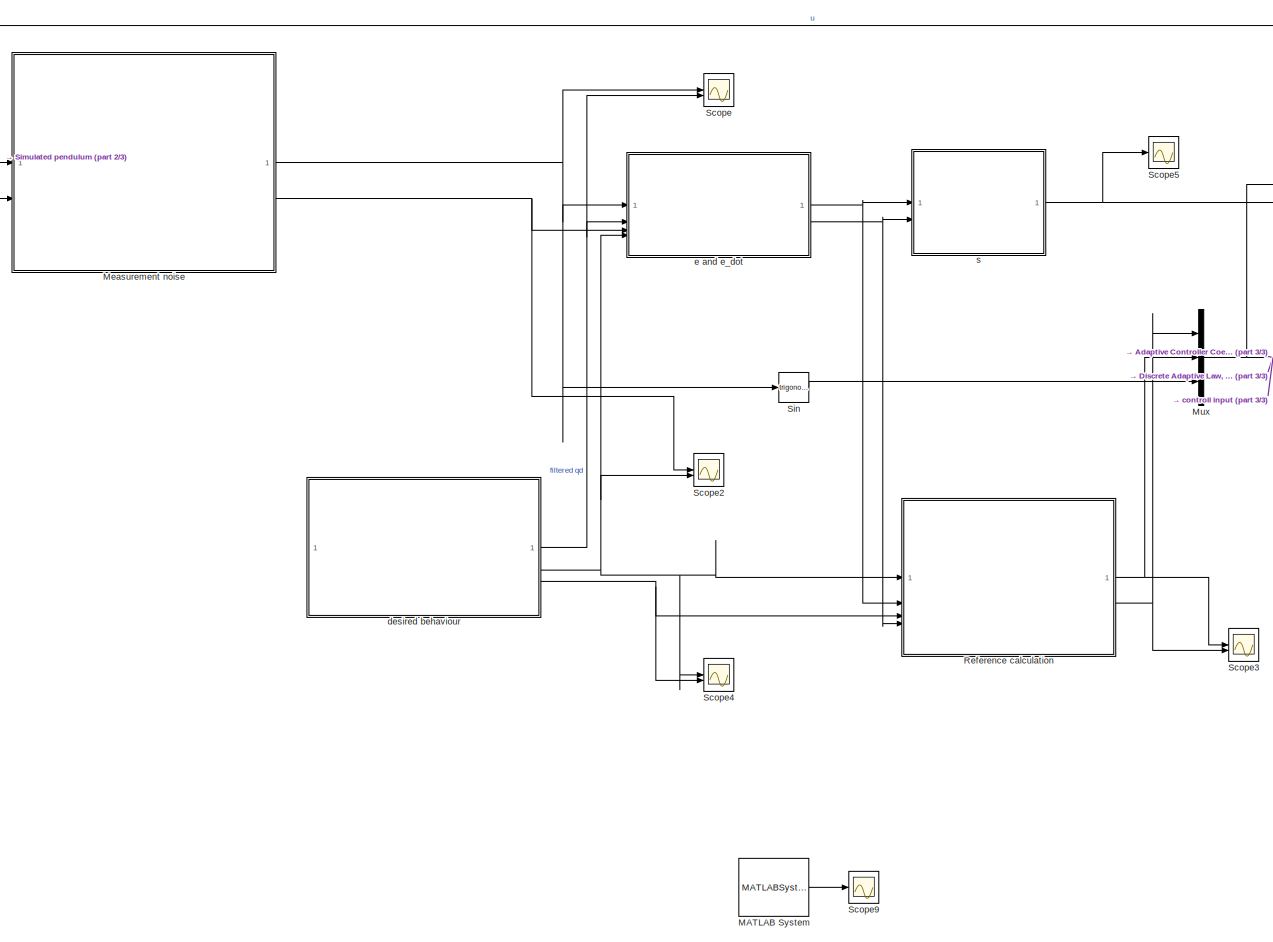
[diagram: root canvas - part 1/3, center side, full height]
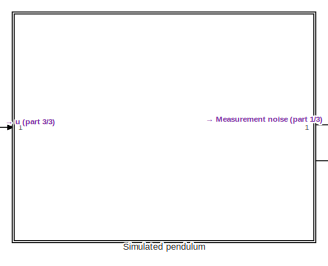
[diagram: root canvas - part 2/3, top left region]
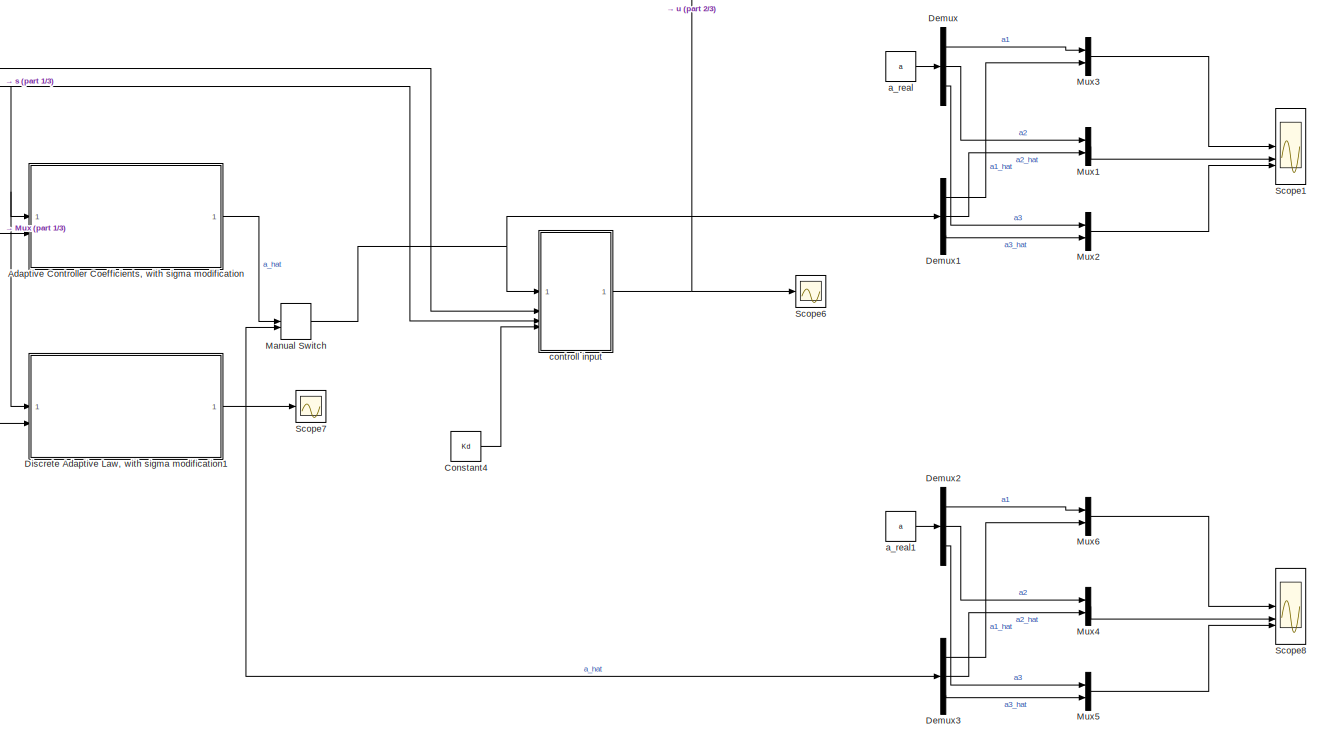
[diagram: root canvas - part 3/3, right side, full height]
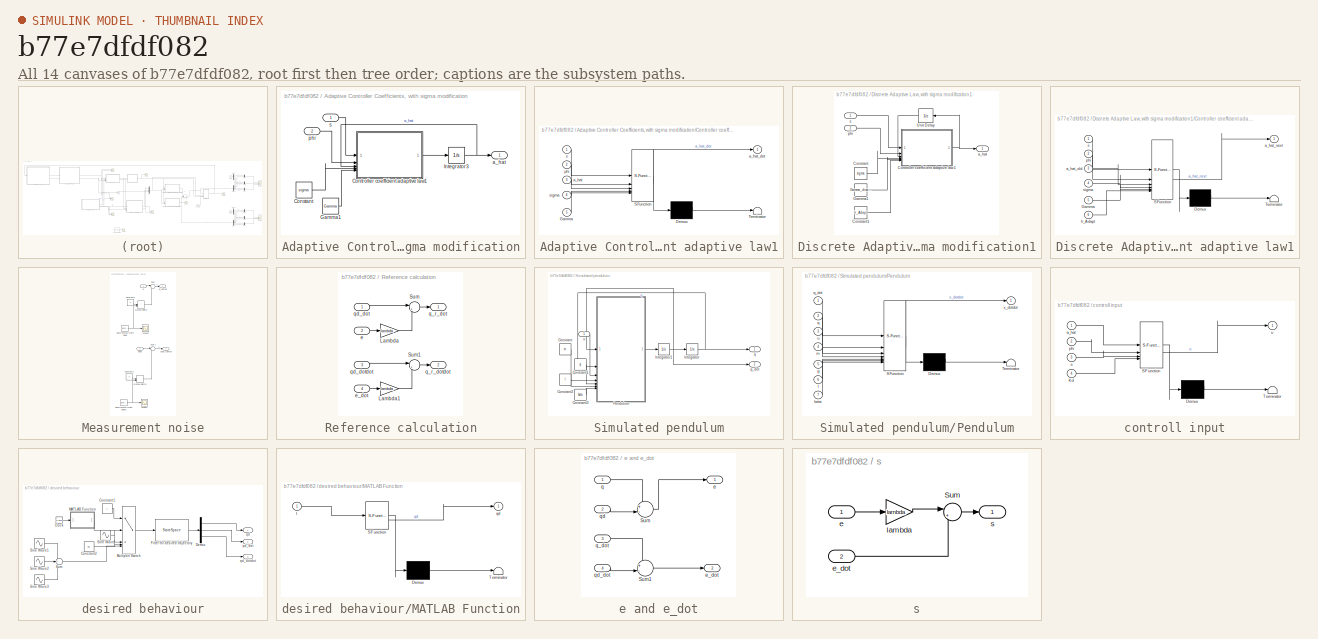
[diagram: thumbnail index - all 14 canvases of the model, root first then tree order]
MODEL slx_b77e7dfdf082
KIND model
CONFIG AbsTol = auto
CONFIG EnableMultiTasking = off
CONFIG FixedStep = auto
CONFIG MaxStep = auto
CONFIG MinStep = auto
CONFIG RelTol = 1e-3
CONFIG SampleTimeConstraint = Unconstrained
CONFIG SolverName = VariableStepAuto
CONFIG StartTime = 0.0
CONFIG StopTime = 15
WORKSPACE source: external: MAT-File  (data not in archive)
BLOCK [SubSystem] Adaptive Controller Coefficients, with sigma modification
BLOCK [Constant] Adaptive Controller Coefficients, with sigma modification/Constant
  Value = sigma
BLOCK [SubSystem] Adaptive Controller Coefficients, with sigma modification/Controller coefficient adaptive law1
  ErrorFcn = Stateflow.Translate.translate
  PermitHierarchicalResolution = ExplicitOnly
  SFBlockType = MATLAB Function
  TreatAsAtomicUnit = on
BLOCK [Demux] Adaptive Controller Coefficients, with sigma modification/Controller coefficient adaptive law1/ Demux 
  Outputs = 1
BLOCK [S-Function] Adaptive Controller Coefficients, with sigma modification/Controller coefficient adaptive law1/ SFunction 
  EnableBusSupport = off
  FunctionName = sf_sfun
  PortCounts = [5 2]
  SFcnIsStateOwnerBlock = off
  SFunctionDeploymentMode = off
  Tag = Stateflow S-Function 6
BLOCK [Terminator] Adaptive Controller Coefficients, with sigma modification/Controller coefficient adaptive law1/ Terminator 
BLOCK [Inport] Adaptive Controller Coefficients, with sigma modification/Controller coefficient adaptive law1/Gamma
  Port = 5
BLOCK [Inport] Adaptive Controller Coefficients, with sigma modification/Controller coefficient adaptive law1/a_hat
  Port = 3
BLOCK [Outport] Adaptive Controller Coefficients, with sigma modification/Controller coefficient adaptive law1/a_hat_dot
BLOCK [Inport] Adaptive Controller Coefficients, with sigma modification/Controller coefficient adaptive law1/phi
  Port = 2
BLOCK [Inport] Adaptive Controller Coefficients, with sigma modification/Controller coefficient adaptive law1/s
BLOCK [Inport] Adaptive Controller Coefficients, with sigma modification/Controller coefficient adaptive law1/sigma
  Port = 4
BLOCK [Constant] Adaptive Controller Coefficients, with sigma modification/Gamma1
  Value = Gamma
BLOCK [Integrator] Adaptive Controller Coefficients, with sigma modification/Integrator3
  InitialCondition = a_hat_0
BLOCK [Outport] Adaptive Controller Coefficients, with sigma modification/a_hat
BLOCK [Inport] Adaptive Controller Coefficients, with sigma modification/phi
  Port = 2
BLOCK [Inport] Adaptive Controller Coefficients, with sigma modification/s
BLOCK [Constant] Constant4
  Value = Kd
BLOCK [Demux] Demux
  Outputs = 3
BLOCK [Demux] Demux1
  Outputs = 3
BLOCK [Demux] Demux2
  Outputs = 3
BLOCK [Demux] Demux3
  Outputs = 3
BLOCK [SubSystem] Discrete Adaptive Law, with sigma modification1
BLOCK [Constant] Discrete Adaptive Law, with sigma modification1/Constant
  Value = sigma
BLOCK [Constant] Discrete Adaptive Law, with sigma modification1/Constant1
  Value = h_Adapt
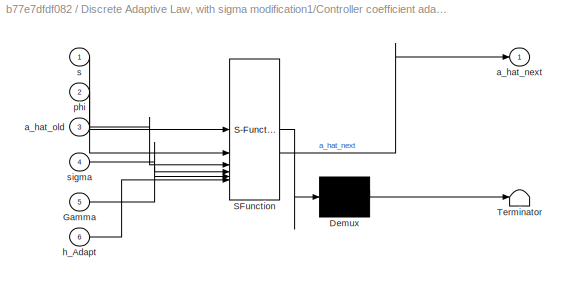
BLOCK [SubSystem] Discrete Adaptive Law, with sigma modification1/Controller coefficient adaptive law1
  ErrorFcn = Stateflow.Translate.translate
  PermitHierarchicalResolution = ExplicitOnly
  SFBlockType = MATLAB Function
  SystemSampleTime = h_Adapt
  TreatAsAtomicUnit = on
BLOCK [Demux] Discrete Adaptive Law, with sigma modification1/Controller coefficient adaptive law1/ Demux 
  Outputs = 1
BLOCK [S-Function] Discrete Adaptive Law, with sigma modification1/Controller coefficient adaptive law1/ SFunction 
  EnableBusSupport = off
  FunctionName = sf_sfun
  PortCounts = [6 2]
  SFcnIsStateOwnerBlock = off
  SFunctionDeploymentMode = off
  Tag = Stateflow S-Function 1
BLOCK [Terminator] Discrete Adaptive Law, with sigma modification1/Controller coefficient adaptive law1/ Terminator 
BLOCK [Inport] Discrete Adaptive Law, with sigma modification1/Controller coefficient adaptive law1/Gamma
  Port = 5
BLOCK [Outport] Discrete Adaptive Law, with sigma modification1/Controller coefficient adaptive law1/a_hat_next
BLOCK [Inport] Discrete Adaptive Law, with sigma modification1/Controller coefficient adaptive law1/a_hat_old
  Port = 3
BLOCK [Inport] Discrete Adaptive Law, with sigma modification1/Controller coefficient adaptive law1/h_Adapt
  Port = 6
BLOCK [Inport] Discrete Adaptive Law, with sigma modification1/Controller coefficient adaptive law1/phi
  Port = 2
BLOCK [Inport] Discrete Adaptive Law, with sigma modification1/Controller coefficient adaptive law1/s
BLOCK [Inport] Discrete Adaptive Law, with sigma modification1/Controller coefficient adaptive law1/sigma
  Port = 4
BLOCK [Constant] Discrete Adaptive Law, with sigma modification1/Gamma1
  Value = Gamma_discrete
BLOCK [UnitDelay] Discrete Adaptive Law, with sigma modification1/Unit Delay
  HasFrameUpgradeWarning = on
  InitialCondition = a_hat_0
  NameLocation = top
  SampleTime = h_Adapt
BLOCK [Outport] Discrete Adaptive Law, with sigma modification1/a_hat
BLOCK [Inport] Discrete Adaptive Law, with sigma modification1/phi
  Port = 2
BLOCK [Inport] Discrete Adaptive Law, with sigma modification1/s
BLOCK [MATLABSystem] MATLAB System
  MaskType = test1
  SimulateUsing = Interpreted execution
  System = test1
BLOCK [ManualSwitch] Manual Switch
BLOCK [SubSystem] Measurement noise
BLOCK [Reference] Measurement noise/Band-Limited White Noise  REF=simulink/Sources/Band-Limited
White Noise
  SourceBlock = simulink/Sources/Band-Limited\nWhite Noise
  SourceType = Band-Limited White Noise.
BLOCK [Reference] Measurement noise/Band-Limited White Noise1  REF=simulink/Sources/Band-Limited
White Noise
  SourceBlock = simulink/Sources/Band-Limited\nWhite Noise
  SourceType = Band-Limited White Noise.
BLOCK [Constant] Measurement noise/Constant1
  Value = 0
BLOCK [Constant] Measurement noise/Constant5
  Value = 0
BLOCK [ManualSwitch] Measurement noise/Manual Switch
  CurrentSetting = 0
BLOCK [ManualSwitch] Measurement noise/Manual Switch1
  CurrentSetting = 0
BLOCK [Scope] Measurement noise/Scope1
  ActiveDisplayYMaximum = 1
  ActiveDisplayYMinimum = -1
  DataLoggingVariableName = ScopeData7
  Floating = off
  GraphicalSettings = {"Style":{"BackgroundColor":[0.12941176470588237,0.12941176470588237,0.12941176470588237],"AxesColor":[0.07058823529411765,0.07058823529411765,0.07058823529411765],"LabelsColor":[0.8509803921568627,0.8509803921568627,0.8509803921568627],"PreserveColors":false,"Visible":[true],"LineStyle":["-"],"LineWidth":[1.5],"BarWidth":[0.9],"LineColor":["auto"],"LineFaceAlpha":[1],"LineEdgeAlpha":[1],"Marker":...<+2032ch>
  MultipleDisplayCache = [{"MaxYLimMag":1,"MaxYLimReal":1,"MinYLimMag":0,"MinYLimReal":-1,"PlotAsMagnitudePhase":false,"ShowGrid":true,"ShowLegend":false,"Title":"%<SignalLabel>","YLabel":""}]
  NumInputPorts = 1
  ScopeFrameLocation = window
  WasSavedAsWebScope = on
  WindowPosition = [360.000000,190.000000,560.000000,420.000000,]
BLOCK [Scope] Measurement noise/Scope2
  ActiveDisplayYMaximum = 1
  ActiveDisplayYMinimum = -1
  DataLoggingVariableName = ScopeData2
  Floating = off
  GraphicalSettings = {"Style":{"BackgroundColor":[0.12941176470588237,0.12941176470588237,0.12941176470588237],"AxesColor":[0.07058823529411765,0.07058823529411765,0.07058823529411765],"LabelsColor":[0.8509803921568627,0.8509803921568627,0.8509803921568627],"PreserveColors":false,"Visible":[true],"LineStyle":["-"],"LineWidth":[1.5],"BarWidth":[0.9],"LineColor":["auto"],"LineFaceAlpha":[1],"LineEdgeAlpha":[1],"Marker":...<+2032ch>
  MultipleDisplayCache = [{"MaxYLimMag":1,"MaxYLimReal":1,"MinYLimMag":0,"MinYLimReal":-1,"PlotAsMagnitudePhase":false,"ShowGrid":true,"ShowLegend":false,"Title":"%<SignalLabel>","YLabel":""}]
  NumInputPorts = 1
  ScopeFrameLocation = window
  WasSavedAsWebScope = on
  WindowPosition = [360.000000,190.000000,560.000000,420.000000,]
BLOCK [Sum] Measurement noise/Sum
  Inputs = |++
BLOCK [Sum] Measurement noise/Sum1
  Inputs = |++
BLOCK [Inport] Measurement noise/q
BLOCK [Outport] Measurement noise/q_tainted
BLOCK [Inport] Measurement noise/qdot
  Port = 2
BLOCK [Outport] Measurement noise/qdot_tainted
  Port = 2
BLOCK [Mux] Mux
  DisplayOption = bar
  Inputs = 3
BLOCK [Mux] Mux1
  DisplayOption = bar
  Inputs = 2
BLOCK [Mux] Mux2
  DisplayOption = bar
  Inputs = 2
BLOCK [Mux] Mux3
  DisplayOption = bar
  Inputs = 2
BLOCK [Mux] Mux4
  DisplayOption = bar
  Inputs = 2
BLOCK [Mux] Mux5
  DisplayOption = bar
  Inputs = 2
BLOCK [Mux] Mux6
  DisplayOption = bar
  Inputs = 2
BLOCK [SubSystem] Reference calculation
BLOCK [Gain] Reference calculation/Lambda
  Gain = lambda
BLOCK [Gain] Reference calculation/Lambda1
  Gain = lambda
BLOCK [Sum] Reference calculation/Sum
  Inputs = |+-
BLOCK [Sum] Reference calculation/Sum1
  Inputs = |+-
BLOCK [Inport] Reference calculation/e
  Port = 2
BLOCK [Inport] Reference calculation/e_dot
  Port = 4
BLOCK [Outport] Reference calculation/q_r_dot
BLOCK [Outport] Reference calculation/q_r_dotdot
  Port = 2
BLOCK [Inport] Reference calculation/qd_dot
BLOCK [Inport] Reference calculation/qd_dotdot
  Port = 3
BLOCK [Scope] Scope
  ActiveDisplayYMaximum = 1.3311085005564014
  ActiveDisplayYMinimum = -1.3223485512123507
  Floating = off
  GraphicalSettings = {"Style":{"BackgroundColor":[0.12941176470588237,0.12941176470588237,0.12941176470588237],"AxesColor":[0.07058823529411765,0.07058823529411765,0.07058823529411765],"LabelsColor":[0.8509803921568627,0.8509803921568627,0.8509803921568627],"PreserveColors":false,"Visible":[true,true],"LineStyle":["-","-"],"LineWidth":[1.5,1.5],"BarWidth":[0.9,0.9],"LineColor":["auto","auto"],"LineFaceAlpha":[1,1],"Li...<+2178ch>
  MultipleDisplayCache = [{"MaxYLimMag":1.0681046050481515,"MaxYLimReal":1.3311085005564014,"MinYLimMag":1.0446865083618986,"MinYLimReal":-1.3223485512123507,"PlotAsMagnitudePhase":false,"ShowGrid":true,"ShowLegend":true,"Title":"%<SignalLabel>","YLabel":""}]
  NumInputPorts = 2
  ScopeFrameLocation = window
  ShowLegend = on
  WasSavedAsWebScope = on
  WindowPosition = [0.000000,36.000000,1280.000000,729.000000,]
BLOCK [Scope] Scope1
  ActiveDisplayString = 3
  ActiveDisplayYMaximum = 2.2453332767433851
  ActiveDisplayYMinimum = -0.5879994906904592
  DataLoggingVariableName = ScopeData1
  Floating = off
  GraphicalSettings = {"AxesScalingProperties":{"AlignXAxis":"Center","AlignYAxis":"Center","AutoScaleXAxisLimits":false,"AxesScaling":"Manual","AxesScalingNumUpdates":10,"ExpandOnly":true,"ScaleAxesLimitsAtStop":false,"XAxisDataRange":100,"YAxisDataRange":80},"DisplayProperties":{"ColorOrder":["auto","auto","auto","auto","auto","auto","auto","auto","auto","auto","auto","auto","auto","auto","auto","auto","auto","auto",...<+3168ch>
  LayoutDimensionsString = [3, 1]
  MultipleDisplayCache = [{"MaxYLimMag":0.40035781464700204,"MaxYLimReal":0.15053047798549243,"MinYLimMag":0,"MinYLimReal":-0.11194634407659998,"PlotAsMagnitudePhase":false,"ShowGrid":true,"ShowLegend":true,"Title":"%<SignalLabel>","YLabel":""},{"MaxYLimMag":1.7630569050517408,"MaxYLimReal":1.7630569050517408,"MinYLimMag":0,"MinYLimReal":-0.49552158905611754,"PlotAsMagnitudePhase":false,"ShowGrid":true,"ShowLegend":true,"...<+253ch>
  NumInputPorts = 3
  ScopeFrameLocation = window
  ShowLegend = on
  WasSavedAsWebScope = on
  WindowPosition = [322.000000,40.000000,637.000000,721.000000,]
BLOCK [Scope] Scope2
  ActiveDisplayYMaximum = 2.0969862516059683
  ActiveDisplayYMinimum = -0.233112357060524
  DataLoggingVariableName = ScopeData8
  Floating = off
  GraphicalSettings = {"Style":{"BackgroundColor":[0.12941176470588237,0.12941176470588237,0.12941176470588237],"AxesColor":[0.07058823529411765,0.07058823529411765,0.07058823529411765],"LabelsColor":[0.8509803921568627,0.8509803921568627,0.8509803921568627],"PreserveColors":false,"Visible":[true,true],"LineStyle":["-","-"],"LineWidth":[1.5,1.5],"BarWidth":[0.9,0.9],"LineColor":["auto","auto"],"LineFaceAlpha":[1,1],"Li...<+2059ch>
  MultipleDisplayCache = [{"MaxYLimMag":2.0969862516059683,"MaxYLimReal":2.0969862516059683,"MinYLimMag":0,"MinYLimReal":-0.233112357060524,"PlotAsMagnitudePhase":false,"ShowGrid":true,"ShowLegend":false,"Title":"%<SignalLabel>","YLabel":""}]
  NumInputPorts = 2
  ScopeFrameLocation = window
  WasSavedAsWebScope = on
  WindowPosition = [360.000000,190.000000,560.000000,420.000000,]
BLOCK [Scope] Scope3
  ActiveDisplayYMaximum = 40.147404968405745
  ActiveDisplayYMinimum = -150.23287759936176
  DataLoggingVariableName = ScopeData3
  Floating = off
  GraphicalSettings = {"Style":{"BackgroundColor":[0.12941176470588237,0.12941176470588237,0.12941176470588237],"AxesColor":[0.07058823529411765,0.07058823529411765,0.07058823529411765],"LabelsColor":[0.8509803921568627,0.8509803921568627,0.8509803921568627],"PreserveColors":false,"Visible":[true,true],"LineStyle":["-","-"],"LineWidth":[1.5,1.5],"BarWidth":[0.9,0.9],"LineColor":["auto","auto"],"LineFaceAlpha":[1,1],"Li...<+2170ch>
  MultipleDisplayCache = [{"MaxYLimMag":150.23287759936176,"MaxYLimReal":40.147404968405745,"MinYLimMag":0,"MinYLimReal":-150.23287759936176,"PlotAsMagnitudePhase":false,"ShowGrid":true,"ShowLegend":true,"Title":"%<SignalLabel>","YLabel":""}]
  NumInputPorts = 2
  ScopeFrameLocation = window
  ShowLegend = on
  WasSavedAsWebScope = on
  WindowPosition = [519.000000,100.000000,560.000000,420.000000,]
BLOCK [Scope] Scope4
  ActiveDisplayYMaximum = 18.036187704027647
  ActiveDisplayYMinimum = -2.0040208560030712
  DataLoggingVariableName = ScopeData4
  Floating = off
  GraphicalSettings = {"Style":{"BackgroundColor":[0.12941176470588237,0.12941176470588237,0.12941176470588237],"AxesColor":[0.07058823529411765,0.07058823529411765,0.07058823529411765],"LabelsColor":[0.8509803921568627,0.8509803921568627,0.8509803921568627],"PreserveColors":false,"Visible":[true,true],"LineStyle":["-","-"],"LineWidth":[1.5,1.5],"BarWidth":[0.9,0.9],"LineColor":["auto","auto"],"LineFaceAlpha":[1,1],"Li...<+2160ch>
  MultipleDisplayCache = [{"MaxYLimMag":18.036187704027647,"MaxYLimReal":18.036187704027647,"MinYLimMag":0,"MinYLimReal":-2.0040208560030712,"PlotAsMagnitudePhase":false,"ShowGrid":true,"ShowLegend":true,"Title":"%<SignalLabel>","YLabel":""}]
  NumInputPorts = 2
  ScopeFrameLocation = window
  ShowLegend = on
  WasSavedAsWebScope = on
  WindowPosition = [591.000000,232.000000,560.000000,420.000000,]
BLOCK [Scope] Scope5
  ActiveDisplayYMaximum = 3.6522263444102858
  ActiveDisplayYMinimum = 0.21309211831446717
  DataLoggingVariableName = ScopeData5
  Floating = off
  GraphicalSettings = {"Style":{"BackgroundColor":[0.12941176470588237,0.12941176470588237,0.12941176470588237],"AxesColor":[0.07058823529411765,0.07058823529411765,0.07058823529411765],"LabelsColor":[0.8509803921568627,0.8509803921568627,0.8509803921568627],"PreserveColors":false,"Visible":[true],"LineStyle":["-"],"LineWidth":[1.5],"BarWidth":[0.9],"LineColor":["auto"],"LineFaceAlpha":[1],"LineEdgeAlpha":[1],"Marker":...<+1983ch>
  MultipleDisplayCache = [{"MaxYLimMag":3.8327275621756316,"MaxYLimReal":3.6522263444102858,"MinYLimMag":0,"MinYLimReal":0.21309211831446717,"PlotAsMagnitudePhase":false,"ShowGrid":true,"ShowLegend":true,"Title":"%<SignalLabel>","YLabel":""}]
  NumInputPorts = 1
  ScopeFrameLocation = window
  ShowLegend = on
  WasSavedAsWebScope = on
  WindowPosition = [640.000000,242.000000,560.000000,420.000000,]
BLOCK [Scope] Scope6
  ActiveDisplayYMaximum = -22.426906344016569
  ActiveDisplayYMinimum = -22.426996970374024
  DataLoggingVariableName = ScopeData6
  Floating = off
  GraphicalSettings = {"AxesScalingProperties":{"AlignXAxis":"Center","AlignYAxis":"Center","AutoScaleXAxisLimits":false,"AxesScaling":"Manual","AxesScalingNumUpdates":10,"ExpandOnly":true,"ScaleAxesLimitsAtStop":false,"XAxisDataRange":100,"YAxisDataRange":80},"DisplayProperties":{"ColorOrder":["auto","auto","auto","auto","auto","auto","auto","auto","auto","auto","auto","auto","auto","auto","auto","auto","auto","auto",...<+1992ch>
  MultipleDisplayCache = [{"MaxYLimMag":1.5787901656552851E+9,"MaxYLimReal":-22.426906344016569,"MinYLimMag":0,"MinYLimReal":-22.426996970374024,"PlotAsMagnitudePhase":false,"ShowGrid":true,"ShowLegend":true,"Title":"%<SignalLabel>","YLabel":""}]
  NumInputPorts = 1
  ScopeFrameLocation = window
  ShowLegend = on
  WasSavedAsWebScope = on
  WindowPosition = [276.000000,108.000000,760.000000,523.000000,]
BLOCK [Scope] Scope7
  ActiveDisplayYMaximum = 1.6283910937645658
  ActiveDisplayYMinimum = -2.8025507650856283
  DataLoggingVariableName = ScopeData9
  Floating = off
  GraphicalSettings = {"AxesScalingProperties":{"AlignXAxis":"Center","AlignYAxis":"Center","AutoScaleXAxisLimits":false,"AxesScaling":"Manual","AxesScalingNumUpdates":10,"ExpandOnly":true,"ScaleAxesLimitsAtStop":false,"XAxisDataRange":100,"YAxisDataRange":80},"DisplayProperties":{"ColorOrder":["auto","auto","auto","auto","auto","auto","auto","auto","auto","auto","auto","auto","auto","auto","auto","auto","auto","auto",...<+2232ch>
  MultipleDisplayCache = [{"MaxYLimMag":6.1572597300448022,"MaxYLimReal":1.6283910937645658,"MinYLimMag":0,"MinYLimReal":-2.8025507650856283,"PlotAsMagnitudePhase":false,"ShowGrid":true,"ShowLegend":false,"Title":"%<SignalLabel>","YLabel":""}]
  NumInputPorts = 1
  ScopeFrameLocation = window
  WasSavedAsWebScope = on
  WindowPosition = [503.000000,123.000000,560.000000,420.000000,]
BLOCK [Scope] Scope8
  ActiveDisplayString = 3
  ActiveDisplayYMaximum = 2.1827028822465171
  ActiveDisplayYMinimum = -0.024522542471835135
  DataLoggingVariableName = ScopeData10
  Floating = off
  GraphicalSettings = {"Style":{"BackgroundColor":[0.12941176470588237,0.12941176470588237,0.12941176470588237],"AxesColor":[0.07058823529411765,0.07058823529411765,0.07058823529411765],"LabelsColor":[0.8509803921568627,0.8509803921568627,0.8509803921568627],"PreserveColors":false,"Visible":[true,true,true,true,true,true],"LineStyle":["-","-","-","-","-","-"],"LineWidth":[1.5,1.5,1.5,1.5,1.5,1.5],"BarWidth":[0.9,0.9,0....<+3173ch>
  LayoutDimensionsString = [3, 1]
  MultipleDisplayCache = [{"MaxYLimMag":0.022256569189214322,"MaxYLimReal":0.022256569189214322,"MinYLimMag":0,"MinYLimReal":-0.00025072990991270149,"PlotAsMagnitudePhase":false,"ShowGrid":true,"ShowLegend":true,"Title":"%<SignalLabel>","YLabel":""},{"MaxYLimMag":0.55624441384278811,"MaxYLimReal":0.55624441384278811,"MinYLimMag":0,"MinYLimReal":-0.0062493793158653332,"PlotAsMagnitudePhase":false,"ShowGrid":true,"ShowLegen...<+264ch>
  NumInputPorts = 3
  ScopeFrameLocation = window
  ShowLegend = on
  WasSavedAsWebScope = on
  WindowPosition = [2.000000,50.000000,637.000000,721.000000,]
BLOCK [Scope] Scope9
  ActiveDisplayYMaximum = 15.262870412025865
  ActiveDisplayYMinimum = -2.8777191571351315
  DataLoggingVariableName = ScopeData11
  Floating = off
  GraphicalSettings = {"AxesScalingProperties":{"AlignXAxis":"Center","AlignYAxis":"Center","AutoScaleXAxisLimits":false,"AxesScaling":"Manual","AxesScalingNumUpdates":10,"ExpandOnly":true,"ScaleAxesLimitsAtStop":false,"XAxisDataRange":100,"YAxisDataRange":80},"DisplayProperties":{"ColorOrder":["auto","auto","auto","auto","auto","auto","auto","auto","auto","auto","auto","auto","auto","auto","auto","auto","auto","auto",...<+2030ch>
  MultipleDisplayCache = [{"MaxYLimMag":18,"MaxYLimReal":15.262870412025865,"MinYLimMag":0,"MinYLimReal":-2.8777191571351315,"PlotAsMagnitudePhase":false,"ShowGrid":true,"ShowLegend":false,"Title":"%<SignalLabel>","YLabel":""}]
  NumInputPorts = 1
  ScopeFrameLocation = window
  WasSavedAsWebScope = on
  WindowPosition = [360.000000,190.000000,560.000000,420.000000,]
BLOCK [SubSystem] Simulated pendulum
BLOCK [Constant] Simulated pendulum/Constant
  Value = m
BLOCK [Constant] Simulated pendulum/Constant1
  Value = g
BLOCK [Constant] Simulated pendulum/Constant2
  Value = l
BLOCK [Constant] Simulated pendulum/Constant3
  Value = beta
BLOCK [Integrator] Simulated pendulum/Integrator
  InitialCondition = q_0
BLOCK [Integrator] Simulated pendulum/Integrator1
  InitialCondition = qdot_0
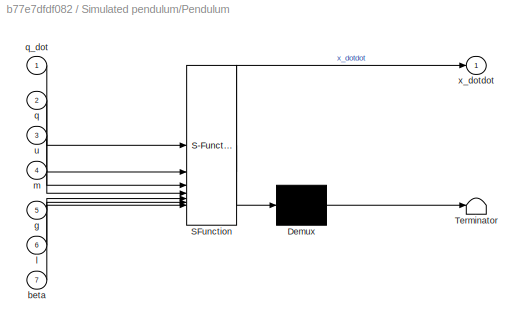
BLOCK [SubSystem] Simulated pendulum/Pendulum
  ErrorFcn = Stateflow.Translate.translate
  PermitHierarchicalResolution = ExplicitOnly
  SFBlockType = MATLAB Function
  TreatAsAtomicUnit = on
BLOCK [Demux] Simulated pendulum/Pendulum/ Demux 
  Outputs = 1
BLOCK [S-Function] Simulated pendulum/Pendulum/ SFunction 
  EnableBusSupport = off
  FunctionName = sf_sfun
  PortCounts = [7 2]
  SFcnIsStateOwnerBlock = off
  SFunctionDeploymentMode = off
  Tag = Stateflow S-Function 2
BLOCK [Terminator] Simulated pendulum/Pendulum/ Terminator 
BLOCK [Inport] Simulated pendulum/Pendulum/beta
  Port = 7
BLOCK [Inport] Simulated pendulum/Pendulum/g
  Port = 5
BLOCK [Inport] Simulated pendulum/Pendulum/l
  Port = 6
BLOCK [Inport] Simulated pendulum/Pendulum/m
  Port = 4
BLOCK [Inport] Simulated pendulum/Pendulum/q
  Port = 2
BLOCK [Inport] Simulated pendulum/Pendulum/q_dot
BLOCK [Inport] Simulated pendulum/Pendulum/u
  Port = 3
BLOCK [Outport] Simulated pendulum/Pendulum/x_dotdot
BLOCK [Outport] Simulated pendulum/q
BLOCK [Outport] Simulated pendulum/q_dot
  Port = 2
BLOCK [Inport] Simulated pendulum/u
BLOCK [Trigonometry] Sin
BLOCK [Constant] a_real
  SampleTime = -1
  Value = a
  VectorParams1D = off
BLOCK [Constant] a_real1
  SampleTime = -1
  Value = a
  VectorParams1D = off
BLOCK [SubSystem] controll input
  ErrorFcn = Stateflow.Translate.translate
  PermitHierarchicalResolution = ExplicitOnly
  SFBlockType = MATLAB Function
  TreatAsAtomicUnit = on
BLOCK [Demux] controll input/ Demux 
  Outputs = 1
BLOCK [S-Function] controll input/ SFunction 
  EnableBusSupport = off
  FunctionName = sf_sfun
  PortCounts = [4 2]
  SFcnIsStateOwnerBlock = off
  SFunctionDeploymentMode = off
  Tag = Stateflow S-Function 3
BLOCK [Terminator] controll input/ Terminator 
BLOCK [Inport] controll input/Kd
  Port = 4
BLOCK [Inport] controll input/a_hat
BLOCK [Inport] controll input/phi
  Port = 2
BLOCK [Inport] controll input/s
  Port = 3
BLOCK [Outport] controll input/u
BLOCK [SubSystem] desired behaviour
BLOCK [Clock] desired behaviour/Clock
BLOCK [Constant] desired behaviour/Constant1
BLOCK [Constant] desired behaviour/Constant2
  Value = qd
BLOCK [Demux] desired behaviour/Demux
  Outputs = 3
BLOCK [StateSpace] desired behaviour/Filter for desired trajectory
  A = A
  B = B
  C = C
  D = D
  InitialCondition = qd_0
BLOCK [SubSystem] desired behaviour/MATLAB Function
  ErrorFcn = Stateflow.Translate.translate
  PermitHierarchicalResolution = ExplicitOnly
  SFBlockType = MATLAB Function
  TreatAsAtomicUnit = on
BLOCK [Demux] desired behaviour/MATLAB Function/ Demux 
  Outputs = 1
BLOCK [S-Function] desired behaviour/MATLAB Function/ SFunction 
  EnableBusSupport = off
  FunctionName = sf_sfun
  PortCounts = [1 2]
  SFcnIsStateOwnerBlock = off
  SFunctionDeploymentMode = off
  Tag = Stateflow S-Function 4
BLOCK [Terminator] desired behaviour/MATLAB Function/ Terminator 
BLOCK [Outport] desired behaviour/MATLAB Function/qd
BLOCK [Inport] desired behaviour/MATLAB Function/t
BLOCK [MultiPortSwitch] desired behaviour/Multiport Switch
  InputSameDT = off
  Inputs = 4
  SaturateOnIntegerOverflow = off
BLOCK [Sin] desired behaviour/Sine Wave
  Amplitude = 0.2
  Frequency = qd_freq_rad
  SampleTime = 0
BLOCK [Sin] desired behaviour/Sine Wave1
  Frequency = qd_freq_rad
  SampleTime = 0
BLOCK [Sin] desired behaviour/Sine Wave2
  Amplitude = 0.05
  Frequency = qd_freq_rad*10
  SampleTime = 0
BLOCK [Sin] desired behaviour/Sine Wave3
  Amplitude = 0.05
  Frequency = qd_freq_rad*0.01
  SampleTime = 0
BLOCK [Sum] desired behaviour/Sum
  Inputs = +++
BLOCK [Outport] desired behaviour/qd
BLOCK [Outport] desired behaviour/qd_dot
  Port = 2
BLOCK [Outport] desired behaviour/qd_dotdot
  Port = 3
BLOCK [SubSystem] e and e_dot
BLOCK [Sum] e and e_dot/Sum
  Inputs = +-|
BLOCK [Sum] e and e_dot/Sum1
  Inputs = +-|
BLOCK [Outport] e and e_dot/e
BLOCK [Outport] e and e_dot/e_dot
  Port = 2
BLOCK [Inport] e and e_dot/q
BLOCK [Inport] e and e_dot/q_dot
  Port = 3
BLOCK [Inport] e and e_dot/qd
  Port = 2
BLOCK [Inport] e and e_dot/qd_dot
  Port = 4
BLOCK [SubSystem] s
BLOCK [Sum] s/Sum
  Inputs = |++
BLOCK [Inport] s/e
BLOCK [Inport] s/e_dot
  Port = 2
BLOCK [Gain] s/lambda
  Gain = lambda
BLOCK [Outport] s/s
LINE Adaptive Controller Coefficients, with sigma modification/Constant:1 -> Adaptive Controller Coefficients, with sigma modification/Controller coefficient adaptive law1:4
LINE Adaptive Controller Coefficients, with sigma modification/Controller coefficient adaptive law1:1 -> Adaptive Controller Coefficients, with sigma modification/Integrator3:1
LINE Adaptive Controller Coefficients, with sigma modification/Gamma1:1 -> Adaptive Controller Coefficients, with sigma modification/Controller coefficient adaptive law1:5
NET Adaptive Controller Coefficients, with sigma modification/Integrator3:1 -> Adaptive Controller Coefficients, with sigma modification/Controller coefficient adaptive law1:3, Adaptive Controller Coefficients, with sigma modification/a_hat:1
LINE Adaptive Controller Coefficients, with sigma modification/phi:1 -> Adaptive Controller Coefficients, with sigma modification/Controller coefficient adaptive law1:2
LINE Adaptive Controller Coefficients, with sigma modification/s:1 -> Adaptive Controller Coefficients, with sigma modification/Controller coefficient adaptive law1:1
LINE Adaptive Controller Coefficients, with sigma modification:1 -> Manual Switch:1
LINE Constant4:1 -> controll input:4
LINE Demux1:1 -> Mux3:2
LINE Demux1:2 -> Mux1:2
LINE Demux1:3 -> Mux2:2
LINE Demux2:1 -> Mux6:1
LINE Demux2:2 -> Mux4:1
LINE Demux2:3 -> Mux5:1
LINE Demux3:1 -> Mux6:2
LINE Demux3:2 -> Mux4:2
LINE Demux3:3 -> Mux5:2
LINE Demux:1 -> Mux3:1
LINE Demux:2 -> Mux1:1
LINE Demux:3 -> Mux2:1
LINE Discrete Adaptive Law, with sigma modification1/Constant1:1 -> Discrete Adaptive Law, with sigma modification1/Controller coefficient adaptive law1:6
LINE Discrete Adaptive Law, with sigma modification1/Constant:1 -> Discrete Adaptive Law, with sigma modification1/Controller coefficient adaptive law1:4
NET Discrete Adaptive Law, with sigma modification1/Controller coefficient adaptive law1:1 -> Discrete Adaptive Law, with sigma modification1/Unit Delay:1, Discrete Adaptive Law, with sigma modification1/a_hat:1
LINE Discrete Adaptive Law, with sigma modification1/Gamma1:1 -> Discrete Adaptive Law, with sigma modification1/Controller coefficient adaptive law1:5
LINE Discrete Adaptive Law, with sigma modification1/Unit Delay:1 -> Discrete Adaptive Law, with sigma modification1/Controller coefficient adaptive law1:3
LINE Discrete Adaptive Law, with sigma modification1/phi:1 -> Discrete Adaptive Law, with sigma modification1/Controller coefficient adaptive law1:2
LINE Discrete Adaptive Law, with sigma modification1/s:1 -> Discrete Adaptive Law, with sigma modification1/Controller coefficient adaptive law1:1
NET Discrete Adaptive Law, with sigma modification1:1 -> Demux3:1, Manual Switch:2, Scope7:1
LINE MATLAB System:1 -> Scope9:1
NET Manual Switch:1 -> Demux1:1, controll input:1
NET Measurement noise/Band-Limited White Noise1:1 -> Measurement noise/Manual Switch1:2, Measurement noise/Scope1:1
NET Measurement noise/Band-Limited White Noise:1 -> Measurement noise/Manual Switch:2, Measurement noise/Scope2:1
LINE Measurement noise/Constant1:1 -> Measurement noise/Manual Switch1:1
LINE Measurement noise/Constant5:1 -> Measurement noise/Manual Switch:1
LINE Measurement noise/Manual Switch1:1 -> Measurement noise/Sum1:2
LINE Measurement noise/Manual Switch:1 -> Measurement noise/Sum:2
LINE Measurement noise/Sum1:1 -> Measurement noise/qdot_tainted:1
LINE Measurement noise/Sum:1 -> Measurement noise/q_tainted:1
LINE Measurement noise/q:1 -> Measurement noise/Sum:1
LINE Measurement noise/qdot:1 -> Measurement noise/Sum1:1
NET Measurement noise:1 -> Scope:1, Sin:1, e and e_dot:1
NET Measurement noise:2 -> Scope2:1, e and e_dot:3
LINE Mux1:1 -> Scope1:2
LINE Mux2:1 -> Scope1:3
LINE Mux3:1 -> Scope1:1
LINE Mux4:1 -> Scope8:2
LINE Mux5:1 -> Scope8:3
LINE Mux6:1 -> Scope8:1
NET Mux:1 -> Adaptive Controller Coefficients, with sigma modification:2, Discrete Adaptive Law, with sigma modification1:2, controll input:2
LINE Reference calculation/Lambda1:1 -> Reference calculation/Sum1:2
LINE Reference calculation/Lambda:1 -> Reference calculation/Sum:2
LINE Reference calculation/Sum1:1 -> Reference calculation/q_r_dotdot:1
LINE Reference calculation/Sum:1 -> Reference calculation/q_r_dot:1
LINE Reference calculation/e:1 -> Reference calculation/Lambda:1
LINE Reference calculation/e_dot:1 -> Reference calculation/Lambda1:1
LINE Reference calculation/qd_dot:1 -> Reference calculation/Sum:1
LINE Reference calculation/qd_dotdot:1 -> Reference calculation/Sum1:1
NET Reference calculation:1 -> Mux:2, Scope3:1
NET Reference calculation:2 -> Mux:1, Scope3:2
LINE Simulated pendulum/Constant1:1 -> Simulated pendulum/Pendulum:5
LINE Simulated pendulum/Constant2:1 -> Simulated pendulum/Pendulum:6
LINE Simulated pendulum/Constant3:1 -> Simulated pendulum/Pendulum:7
LINE Simulated pendulum/Constant:1 -> Simulated pendulum/Pendulum:4
NET Simulated pendulum/Integrator1:1 -> Simulated pendulum/Integrator:1, Simulated pendulum/Pendulum:1, Simulated pendulum/q_dot:1
NET Simulated pendulum/Integrator:1 -> Simulated pendulum/Pendulum:2, Simulated pendulum/q:1
LINE Simulated pendulum/Pendulum:1 -> Simulated pendulum/Integrator1:1
LINE Simulated pendulum/u:1 -> Simulated pendulum/Pendulum:3
LINE Simulated pendulum:1 -> Measurement noise:1
LINE Simulated pendulum:2 -> Measurement noise:2
LINE Sin:1 -> Mux:3
LINE a_real1:1 -> Demux2:1
LINE a_real:1 -> Demux:1
NET controll input:1 -> Scope6:1, Simulated pendulum:1
LINE desired behaviour/Clock:1 -> desired behaviour/MATLAB Function:1
LINE desired behaviour/Constant1:1 -> desired behaviour/Multiport Switch:1
LINE desired behaviour/Constant2:1 -> desired behaviour/Multiport Switch:4
LINE desired behaviour/Demux:1 -> desired behaviour/qd:1
LINE desired behaviour/Demux:2 -> desired behaviour/qd_dot:1
LINE desired behaviour/Demux:3 -> desired behaviour/qd_dotdot:1
LINE desired behaviour/Filter for desired trajectory:1 -> desired behaviour/Demux:1
LINE desired behaviour/MATLAB Function:1 -> desired behaviour/Multiport Switch:2
LINE desired behaviour/Multiport Switch:1 -> desired behaviour/Filter for desired trajectory:1
LINE desired behaviour/Sine Wave1:1 -> desired behaviour/Sum:1
LINE desired behaviour/Sine Wave2:1 -> desired behaviour/Sum:2
LINE desired behaviour/Sine Wave3:1 -> desired behaviour/Sum:3
LINE desired behaviour/Sine Wave:1 -> desired behaviour/Multiport Switch:3
LINE desired behaviour/Sum:1 -> desired behaviour/Multiport Switch:5
NET desired behaviour:1 -> Scope:2, e and e_dot:2
NET desired behaviour:2 -> Reference calculation:1, Scope2:2, Scope4:1, e and e_dot:4
NET desired behaviour:3 -> Reference calculation:3, Scope4:2
LINE e and e_dot/Sum1:1 -> e and e_dot/e_dot:1
LINE e and e_dot/Sum:1 -> e and e_dot/e:1
LINE e and e_dot/q:1 -> e and e_dot/Sum:1
LINE e and e_dot/q_dot:1 -> e and e_dot/Sum1:1
LINE e and e_dot/qd:1 -> e and e_dot/Sum:2
LINE e and e_dot/qd_dot:1 -> e and e_dot/Sum1:2
NET e and e_dot:1 -> Reference calculation:2, s:1
NET e and e_dot:2 -> Reference calculation:4, s:2
LINE s/Sum:1 -> s/s:1
LINE s/e:1 -> s/lambda:1
LINE s/e_dot:1 -> s/Sum:2
LINE s/lambda:1 -> s/Sum:1
NET s:1 -> Adaptive Controller Coefficients, with sigma modification:1, Discrete Adaptive Law, with sigma modification1:1, Scope5:1, controll input:3
note: NET lines group one-source signal fan-out (src -> all destinations, sorted); 1:1 wires keep LINE
CHART Discrete Adaptive Law, with sigma modification1/Controller coefficient adaptive law1 states=1 transitions=1
  STATE_LABEL 'eML_blk_kernel()'
  STATE_LABEL 'SCRIPT:\nfunction a_hat_next = fcn(s, phi, a_hat_old, sigma, Gamma, h_Adapt)\n    a_hat_next = a_hat_old + h_Adapt*(-Gamma*s*phi- sigma*a_hat_old);\nend'
CHART Simulated pendulum/Pendulum states=1 transitions=1
  STATE_LABEL 'eML_blk_kernel()'
  STATE_LABEL 'SCRIPT:\nfunction x_dotdot  = fcn(q_dot, q, u, m, g, l, beta)\n    x_dotdot = 1/(m*l^2) * (u - m*g*l*sin(q) - beta*q_dot);\nend\n'
CHART controll input states=1 transitions=1
  STATE_LABEL 'eML_blk_kernel()'
  STATE_LABEL "SCRIPT:\nfunction u = fcn(a_hat, phi, s, Kd)\nu = a_hat' * phi - Kd*s;\n"
CHART desired behaviour/MATLAB Function states=1 transitions=1
  STATE_LABEL 'eML_blk_kernel()'
  STATE_LABEL 'SCRIPT:\nfunction qd = fcn(t)\n    if 0 <= t && t <= 3\n        qd = 60* pi/180;\n    elseif 3 < t && t <= 6\n        qd = -60 * pi/180;\n    else\n        qd = 0;\n    end\n\n'
CHART Adaptive Controller Coefficients, with sigma modification/Controller coefficient adaptive law1 states=1 transitions=1
  STATE_LABEL 'eML_blk_kernel()'
  STATE_LABEL 'SCRIPT:\nfunction a_hat_dot = fcn(s, phi, a_hat, sigma, Gamma)\n    a_hat_dot = -Gamma*s*phi - sigma*a_hat;\n    \nend'
CHART  states=0 transitions=0
CHART  states=0 transitions=0
CHART  states=0 transitions=0
CHART  states=0 transitions=0
CHART  states=0 transitions=0
